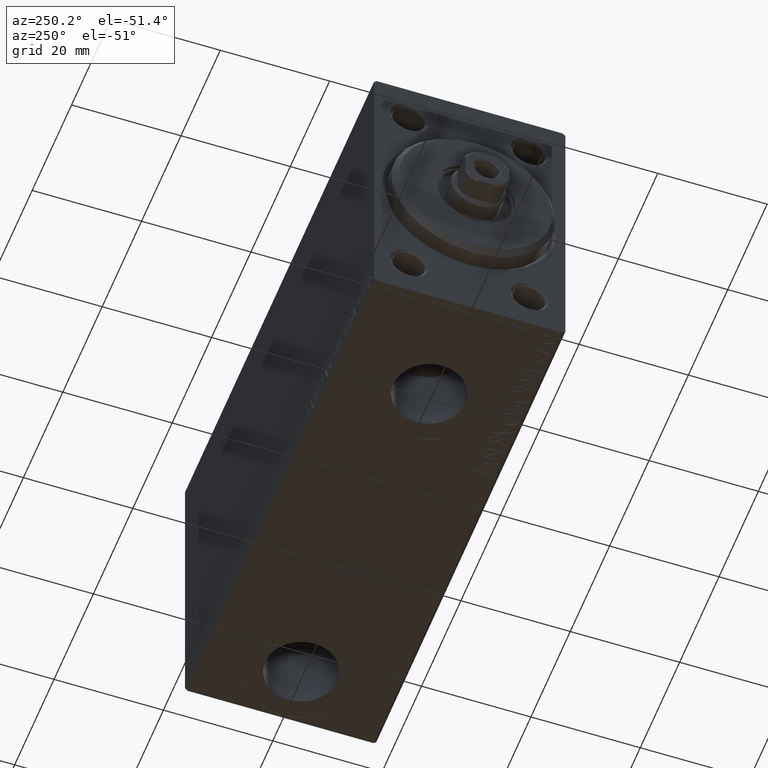
[diagram: clean part render]
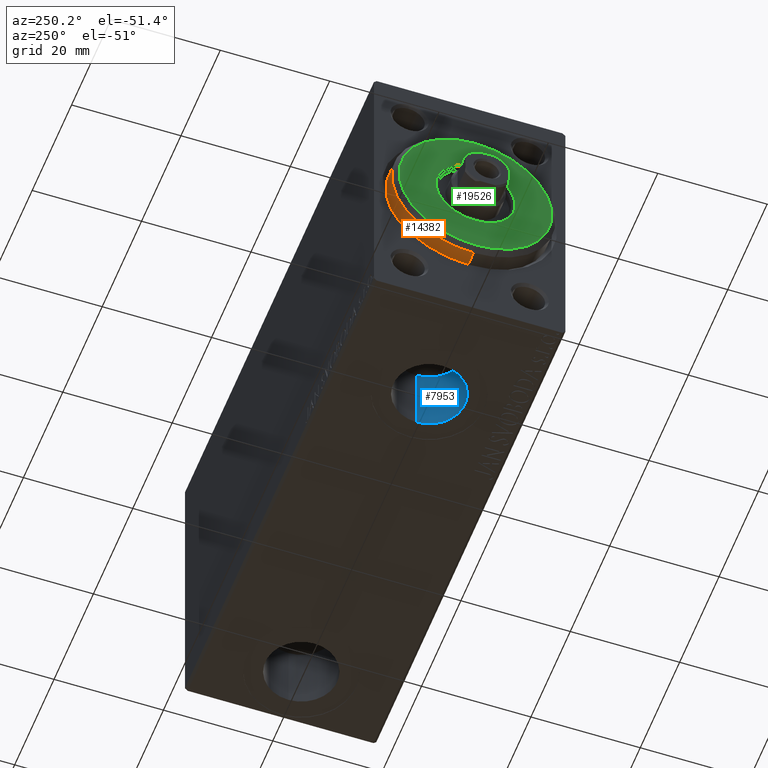
[diagram: same view with three faces highlighted in distinct colors, each labeled with its STEP entity id]
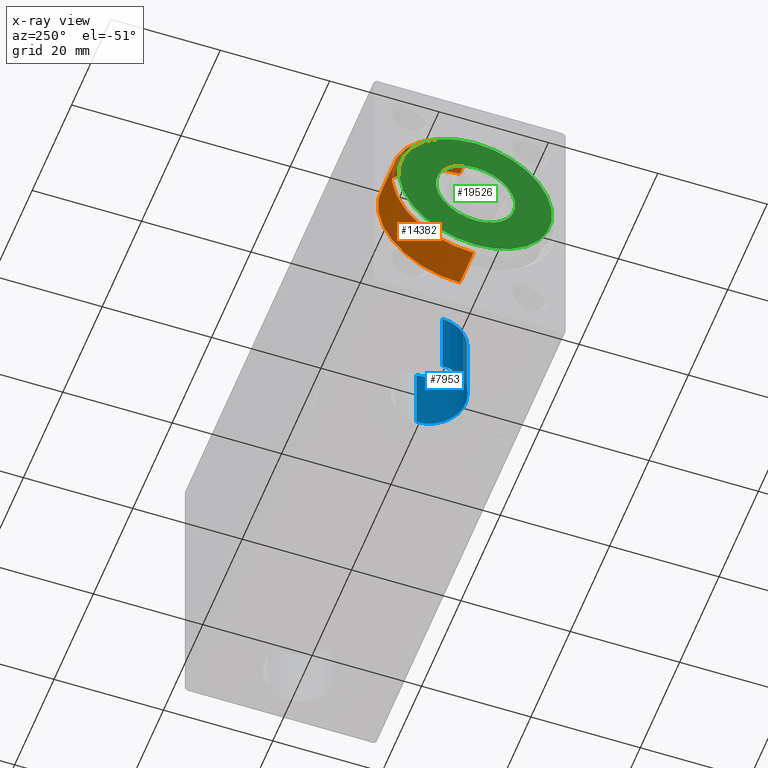
[diagram: x-ray of the same camera — body ghosted, the three highlighted faces saturated]
A machine part, auxiliary view with three faces highlighted in distinct colors.
The next image is the same camera in x-ray (body ghosted, the three faces saturated) — at least one of them is partly hidden behind the body in this view.
Their STEP definitions:

[orange] entity #14382 — the highlighted cylindrical surface (partial cylindrical patch) has radius 15 mm, axis along (1, -0, -0).
#1967 = ORIENTED_EDGE ( 'NONE', *, *, #21368, .F. ) ;
#3251 = DIRECTION ( 'NONE',  ( 0.000000000000000000, 0.000000000000000000, -1.000000000000000000 ) ) ;
#4282 = FACE_OUTER_BOUND ( 'NONE', #40944, .T. ) ;
#4507 = CYLINDRICAL_SURFACE ( 'NONE', #37216, 15.00000000000000000 ) ;
#4617 = CIRCLE ( 'NONE', #17880, 15.00000000000000000 ) ;
#6111 = EDGE_CURVE ( 'NONE', #22023, #41902, #4617, .T. ) ;
#7152 = DIRECTION ( 'NONE',  ( -1.000000000000000000, 0.000000000000000000, 0.000000000000000000 ) ) ;
#8246 = DIRECTION ( 'NONE',  ( 0.000000000000000000, 0.000000000000000000, 1.000000000000000000 ) ) ;
#9310 = DIRECTION ( 'NONE',  ( -1.000000000000000000, -0.000000000000000000, -0.000000000000000000 ) ) ;
#9667 = CARTESIAN_POINT ( 'NONE',  ( 1.999999999999995781, 1.836970198721029589E-15, -15.00000000000000000 ) ) ;
#10142 = VECTOR ( 'NONE', #9310, 1000.000000000000000 ) ;
#12568 = CARTESIAN_POINT ( 'NONE',  ( 3.000000000000000000, 0.000000000000000000, 15.00000000000000000 ) ) ;
#12769 = LINE ( 'NONE', #15990, #10142 ) ;
#14382 = ADVANCED_FACE ( 'NONE', ( #4282 ), #4507, .T. ) ;
#15990 = CARTESIAN_POINT ( 'NONE',  ( 3.000000000000000000, 1.836970198721029589E-15, -15.00000000000000000 ) ) ;
#16176 = ORIENTED_EDGE ( 'NONE', *, *, #6111, .T. ) ;
#16722 = CARTESIAN_POINT ( 'NONE',  ( -5.000000000000000000, 1.836970198721029589E-15, -15.00000000000000000 ) ) ;
#17766 = VERTEX_POINT ( 'NONE', #41690 ) ;
#17880 = AXIS2_PLACEMENT_3D ( 'NONE', #20753, #7152, #3251 ) ;
#18169 = CARTESIAN_POINT ( 'NONE',  ( -5.000000000000000000, 0.000000000000000000, 0.000000000000000000 ) ) ;
#19748 = CIRCLE ( 'NONE', #21964, 15.00000000000000000 ) ;
#20344 = EDGE_CURVE ( 'NONE', #22023, #29911, #12769, .T. ) ;
#20753 = CARTESIAN_POINT ( 'NONE',  ( 1.999999999999995781, 0.000000000000000000, 0.000000000000000000 ) ) ;
#21368 = EDGE_CURVE ( 'NONE', #29911, #17766, #19748, .T. ) ;
#21964 = AXIS2_PLACEMENT_3D ( 'NONE', #18169, #29215, #8246 ) ;
#22023 = VERTEX_POINT ( 'NONE', #9667 ) ;
#22965 = CARTESIAN_POINT ( 'NONE',  ( 1.999999999999995781, 0.000000000000000000, 15.00000000000000000 ) ) ;
#24800 = DIRECTION ( 'NONE',  ( -1.000000000000000000, -0.000000000000000000, -0.000000000000000000 ) ) ;
#25478 = CARTESIAN_POINT ( 'NONE',  ( 3.000000000000000000, 0.000000000000000000, 0.000000000000000000 ) ) ;
#29215 = DIRECTION ( 'NONE',  ( -1.000000000000000000, 0.000000000000000000, 0.000000000000000000 ) ) ;
#29911 = VERTEX_POINT ( 'NONE', #16722 ) ;
#32161 = DIRECTION ( 'NONE',  ( 0.000000000000000000, 0.000000000000000000, 1.000000000000000000 ) ) ;
#33996 = VECTOR ( 'NONE', #43211, 1000.000000000000000 ) ;
#36665 = EDGE_CURVE ( 'NONE', #41902, #17766, #44117, .T. ) ;
#37216 = AXIS2_PLACEMENT_3D ( 'NONE', #25478, #24800, #32161 ) ;
#38041 = ORIENTED_EDGE ( 'NONE', *, *, #20344, .F. ) ;
#40944 = EDGE_LOOP ( 'NONE', ( #38041, #16176, #44277, #1967 ) ) ;
#41690 = CARTESIAN_POINT ( 'NONE',  ( -5.000000000000000000, 0.000000000000000000, 15.00000000000000000 ) ) ;
#41902 = VERTEX_POINT ( 'NONE', #22965 ) ;
#43211 = DIRECTION ( 'NONE',  ( -1.000000000000000000, -0.000000000000000000, -0.000000000000000000 ) ) ;
#44117 = LINE ( 'NONE', #12568, #33996 ) ;
#44277 = ORIENTED_EDGE ( 'NONE', *, *, #36665, .T. ) ;

[blue] entity #7953 — the highlighted cylindrical surface (partial cylindrical patch) has radius 6.58 mm, axis along (-0, -0, -1).
#517 = CARTESIAN_POINT ( 'NONE',  ( 13.92000000000000171, -2.726986211408916281E-15, -27.40000000000000924 ) ) ;
#1377 = DIRECTION ( 'NONE',  ( -1.000000000000000000, 0.000000000000000000, 0.000000000000000000 ) ) ;
#2743 = EDGE_CURVE ( 'NONE', #40596, #3747, #17490, .T. ) ;
#3163 = CARTESIAN_POINT ( 'NONE',  ( 13.92000000000000171, -2.726986211408916281E-15, -14.50000000000000711 ) ) ;
#3747 = VERTEX_POINT ( 'NONE', #37927 ) ;
#6510 = AXIS2_PLACEMENT_3D ( 'NONE', #35789, #14597, #11828 ) ;
#7953 = ADVANCED_FACE ( 'NONE', ( #28564 ), #39366, .F. ) ;
#8829 = AXIS2_PLACEMENT_3D ( 'NONE', #45411, #16397, #27689 ) ;
#9843 = ORIENTED_EDGE ( 'NONE', *, *, #16184, .T. ) ;
#10705 = VECTOR ( 'NONE', #39012, 1000.000000000000000 ) ;
#11828 = DIRECTION ( 'NONE',  ( -1.000000000000000000, 0.000000000000000000, 0.000000000000000000 ) ) ;
#13000 = ORIENTED_EDGE ( 'NONE', *, *, #43671, .F. ) ;
#14597 = DIRECTION ( 'NONE',  ( 0.000000000000000000, 0.000000000000000000, -1.000000000000000000 ) ) ;
#16184 = EDGE_CURVE ( 'NONE', #3747, #21031, #36646, .T. ) ;
#16397 = DIRECTION ( 'NONE',  ( 0.000000000000000000, 0.000000000000000000, -1.000000000000000000 ) ) ;
#17490 = LINE ( 'NONE', #35212, #29678 ) ;
#17658 = CIRCLE ( 'NONE', #8829, 6.580000000000002736 ) ;
#19874 = ORIENTED_EDGE ( 'NONE', *, *, #25408, .F. ) ;
#21031 = VERTEX_POINT ( 'NONE', #517 ) ;
#21690 = VERTEX_POINT ( 'NONE', #3163 ) ;
#21891 = CARTESIAN_POINT ( 'NONE',  ( 20.50000000000000355, -2.726986211408916281E-15, -14.50000000000000711 ) ) ;
#24978 = CARTESIAN_POINT ( 'NONE',  ( 13.92000000000000171, -2.726986211408916281E-15, -14.50000000000000711 ) ) ;
#25408 = EDGE_CURVE ( 'NONE', #40596, #21690, #17658, .T. ) ;
#27181 = EDGE_LOOP ( 'NONE', ( #19874, #45531, #9843, #13000 ) ) ;
#27689 = DIRECTION ( 'NONE',  ( -1.000000000000000000, 0.000000000000000000, 0.000000000000000000 ) ) ;
#28564 = FACE_OUTER_BOUND ( 'NONE', #27181, .T. ) ;
#28981 = DIRECTION ( 'NONE',  ( -0.000000000000000000, -0.000000000000000000, -1.000000000000000000 ) ) ;
#29678 = VECTOR ( 'NONE', #28981, 1000.000000000000000 ) ;
#31677 = LINE ( 'NONE', #24978, #10705 ) ;
#35212 = CARTESIAN_POINT ( 'NONE',  ( 27.08000000000000540, -1.921168617569958028E-15, -14.50000000000000711 ) ) ;
#35591 = AXIS2_PLACEMENT_3D ( 'NONE', #21891, #36369, #1377 ) ;
#35789 = CARTESIAN_POINT ( 'NONE',  ( 20.50000000000000355, -2.726986211408916281E-15, -27.40000000000000924 ) ) ;
#36369 = DIRECTION ( 'NONE',  ( -0.000000000000000000, -0.000000000000000000, -1.000000000000000000 ) ) ;
#36646 = CIRCLE ( 'NONE', #6510, 6.580000000000002736 ) ;
#37927 = CARTESIAN_POINT ( 'NONE',  ( 27.08000000000000540, -1.921168617569958028E-15, -27.40000000000000924 ) ) ;
#38923 = CARTESIAN_POINT ( 'NONE',  ( 27.08000000000000540, -1.921168617569958028E-15, -14.50000000000000711 ) ) ;
#39012 = DIRECTION ( 'NONE',  ( -0.000000000000000000, -0.000000000000000000, -1.000000000000000000 ) ) ;
#39366 = CYLINDRICAL_SURFACE ( 'NONE', #35591, 6.580000000000002736 ) ;
#40596 = VERTEX_POINT ( 'NONE', #38923 ) ;
#43671 = EDGE_CURVE ( 'NONE', #21690, #21031, #31677, .T. ) ;
#45411 = CARTESIAN_POINT ( 'NONE',  ( 20.50000000000000355, -2.726986211408916281E-15, -14.50000000000000711 ) ) ;
#45531 = ORIENTED_EDGE ( 'NONE', *, *, #2743, .T. ) ;

[green] entity #19526 — the highlighted planar face has unit normal (-1, 0, 0).
#136 = DIRECTION ( 'NONE',  ( 1.000000000000000000, 0.000000000000000000, 0.000000000000000000 ) ) ;
#422 = ORIENTED_EDGE ( 'NONE', *, *, #32884, .T. ) ;
#1609 = DIRECTION ( 'NONE',  ( 0.000000000000000000, 0.000000000000000000, -1.000000000000000000 ) ) ;
#1951 = CARTESIAN_POINT ( 'NONE',  ( 3.000000000000000000, 8.878689293818310074E-16, 7.249999999999999112 ) ) ;
#3258 = FACE_BOUND ( 'NONE', #28030, .T. ) ;
#3582 = CARTESIAN_POINT ( 'NONE',  ( 3.000000000000000000, 0.000000000000000000, 0.000000000000000000 ) ) ;
#4750 = CARTESIAN_POINT ( 'NONE',  ( 3.000000000000000000, 0.000000000000000000, 0.000000000000000000 ) ) ;
#6250 = DIRECTION ( 'NONE',  ( 1.000000000000000000, -0.000000000000000000, 0.000000000000000000 ) ) ;
#7120 = AXIS2_PLACEMENT_3D ( 'NONE', #4750, #11197, #39736 ) ;
#7190 = VERTEX_POINT ( 'NONE', #28053 ) ;
#7425 = ORIENTED_EDGE ( 'NONE', *, *, #22906, .F. ) ;
#8768 = CIRCLE ( 'NONE', #27157, 7.249999999999999112 ) ;
#9912 = ORIENTED_EDGE ( 'NONE', *, *, #15853, .T. ) ;
#11197 = DIRECTION ( 'NONE',  ( 1.000000000000000000, -0.000000000000000000, 0.000000000000000000 ) ) ;
#12542 = CARTESIAN_POINT ( 'NONE',  ( 3.000000000000000000, 1.775737858763662015E-15, -13.99999999999999645 ) ) ;
#13375 = CARTESIAN_POINT ( 'NONE',  ( 3.000000000000000000, 0.000000000000000000, 0.000000000000000000 ) ) ;
#14909 = AXIS2_PLACEMENT_3D ( 'NONE', #29934, #40496, #1609 ) ;
#15853 = EDGE_CURVE ( 'NONE', #7190, #35946, #40931, .T. ) ;
#16561 = DIRECTION ( 'NONE',  ( 1.000000000000000000, 0.000000000000000000, 0.000000000000000000 ) ) ;
#17302 = PLANE ( 'NONE',  #33036 ) ;
#19526 = ADVANCED_FACE ( 'NONE', ( #34796, #3258 ), #17302, .T. ) ;
#22906 = EDGE_CURVE ( 'NONE', #24592, #27341, #8768, .T. ) ;
#24453 = AXIS2_PLACEMENT_3D ( 'NONE', #34056, #16561, #44654 ) ;
#24592 = VERTEX_POINT ( 'NONE', #32879 ) ;
#27157 = AXIS2_PLACEMENT_3D ( 'NONE', #3582, #136, #39685 ) ;
#27341 = VERTEX_POINT ( 'NONE', #1951 ) ;
#28030 = EDGE_LOOP ( 'NONE', ( #7425, #38880 ) ) ;
#28053 = CARTESIAN_POINT ( 'NONE',  ( 3.000000000000000000, 0.000000000000000000, 13.99999999999999645 ) ) ;
#28878 = CIRCLE ( 'NONE', #24453, 7.249999999999999112 ) ;
#29934 = CARTESIAN_POINT ( 'NONE',  ( 3.000000000000000000, 0.000000000000000000, 0.000000000000000000 ) ) ;
#31361 = DIRECTION ( 'NONE',  ( 0.000000000000000000, 0.000000000000000000, -1.000000000000000000 ) ) ;
#32879 = CARTESIAN_POINT ( 'NONE',  ( 3.000000000000000000, 0.000000000000000000, -7.249999999999999112 ) ) ;
#32884 = EDGE_CURVE ( 'NONE', #35946, #7190, #33282, .T. ) ;
#33036 = AXIS2_PLACEMENT_3D ( 'NONE', #13375, #6250, #31361 ) ;
#33282 = CIRCLE ( 'NONE', #14909, 13.99999999999999645 ) ;
#34056 = CARTESIAN_POINT ( 'NONE',  ( 3.000000000000000000, 0.000000000000000000, 0.000000000000000000 ) ) ;
#34796 = FACE_OUTER_BOUND ( 'NONE', #41636, .T. ) ;
#35693 = EDGE_CURVE ( 'NONE', #27341, #24592, #28878, .T. ) ;
#35946 = VERTEX_POINT ( 'NONE', #12542 ) ;
#38880 = ORIENTED_EDGE ( 'NONE', *, *, #35693, .F. ) ;
#39685 = DIRECTION ( 'NONE',  ( 0.000000000000000000, 0.000000000000000000, -1.000000000000000000 ) ) ;
#39736 = DIRECTION ( 'NONE',  ( 0.000000000000000000, 0.000000000000000000, -1.000000000000000000 ) ) ;
#40496 = DIRECTION ( 'NONE',  ( 1.000000000000000000, -0.000000000000000000, 0.000000000000000000 ) ) ;
#40931 = CIRCLE ( 'NONE', #7120, 13.99999999999999645 ) ;
#41636 = EDGE_LOOP ( 'NONE', ( #9912, #422 ) ) ;
#44654 = DIRECTION ( 'NONE',  ( 0.000000000000000000, 0.000000000000000000, -1.000000000000000000 ) ) ;